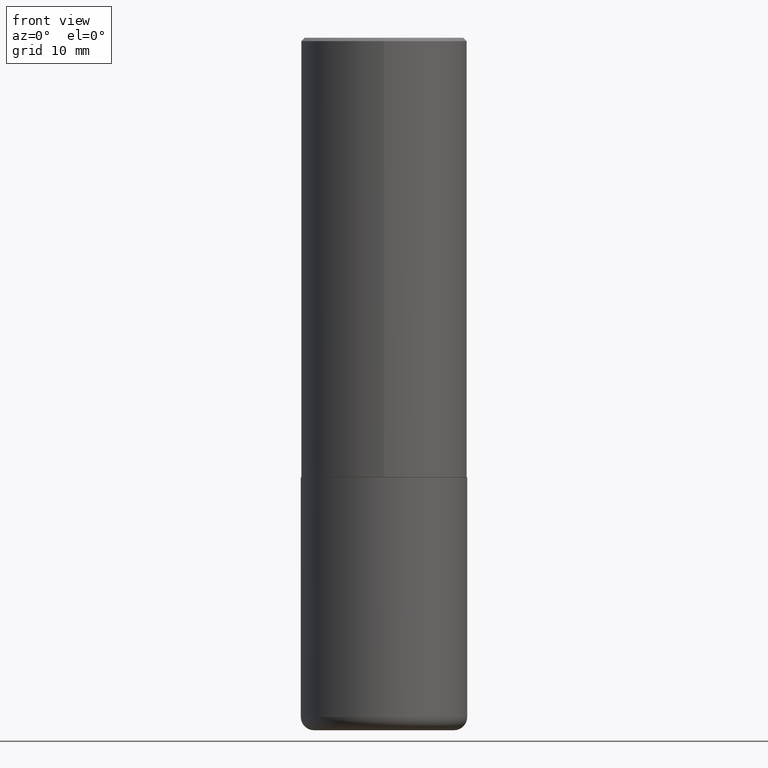
[diagram: clean part render]
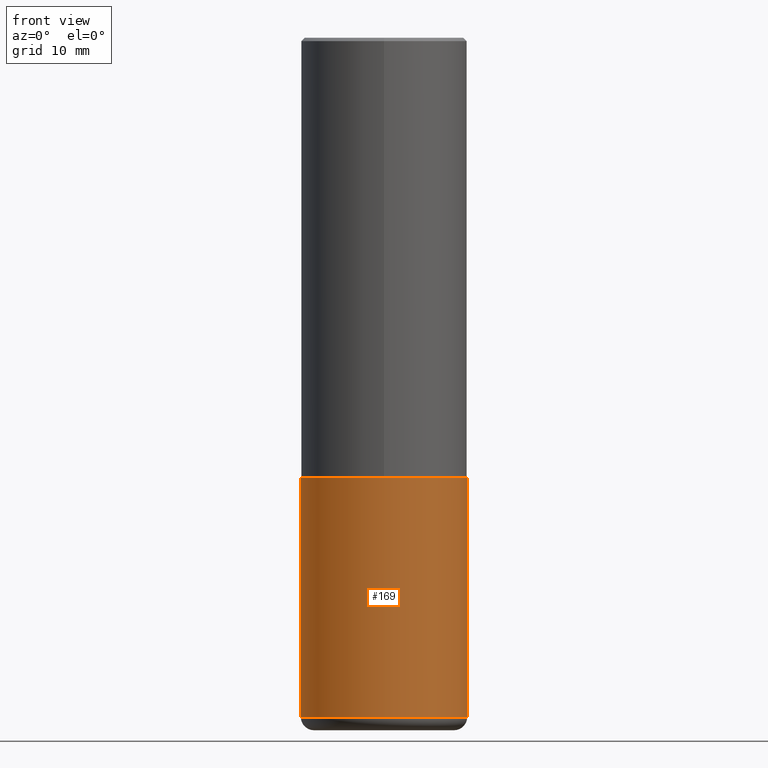
[diagram: same view with one face highlighted and labeled with its STEP entity id]
A machine part, front view. The second image highlights one B-rep face of the part: STEP entity #169.
In plain terms, the highlighted cylindrical surface (partial cylindrical patch) has radius 12.5006 mm, axis along (-0, 0, 1).
Its self-contained STEP definition (entity closure, byte-faithful):
#17 = AXIS2_PLACEMENT_3D ( 'NONE', #337, #87, #414 ) ;
#21 = EDGE_CURVE ( 'NONE', #369, #107, #357, .T. ) ;
#44 = AXIS2_PLACEMENT_3D ( 'NONE', #354, #325, #390 ) ;
#62 = EDGE_CURVE ( 'NONE', #205, #369, #309, .T. ) ;
#74 = CARTESIAN_POINT ( 'NONE',  ( 0.4921499999999999764, -3.436665081823295777E-15, 2.399810400207969603E-29 ) ) ;
#87 = DIRECTION ( 'NONE',  ( -2.445468806185136597E-29, 3.491481338843145583E-15, 1.000000000000000000 ) ) ;
#107 = VERTEX_POINT ( 'NONE', #154 ) ;
#123 = CARTESIAN_POINT ( 'NONE',  ( -0.4921499999999999764, 3.496936074043332897E-15, -2.420853904668951509E-29 ) ) ;
#127 = CARTESIAN_POINT ( 'NONE',  ( 0.4921500000000000874, -1.745775584234960235E-14, -4.015800000000000480 ) ) ;
#131 = VERTEX_POINT ( 'NONE', #127 ) ;
#133 = VECTOR ( 'NONE', #228, 39.37007874015748143 ) ;
#154 = CARTESIAN_POINT ( 'NONE',  ( 0.4921499999999999764, -1.250893019267332682E-14, -2.598400000000000265 ) ) ;
#168 = ORIENTED_EDGE ( 'NONE', *, *, #347, .T. ) ;
#169 = ADVANCED_FACE ( 'NONE', ( #259 ), #191, .T. ) ;
#172 = CIRCLE ( 'NONE', #44, 0.4921500000000000319 ) ;
#191 = CYLINDRICAL_SURFACE ( 'NONE', #373, 0.4921499999999999764 ) ;
#196 = CARTESIAN_POINT ( 'NONE',  ( -0.4921499999999999764, -8.049741861644835125E-15, -2.598400000000000265 ) ) ;
#205 = VERTEX_POINT ( 'NONE', #220 ) ;
#220 = CARTESIAN_POINT ( 'NONE',  ( -0.4921500000000000874, -1.052415468648297131E-14, -4.015800000000000480 ) ) ;
#228 = DIRECTION ( 'NONE',  ( -2.445468806185136877E-29, 3.491481338843145188E-15, 1.000000000000000000 ) ) ;
#237 = ORIENTED_EDGE ( 'NONE', *, *, #375, .T. ) ;
#258 = ORIENTED_EDGE ( 'NONE', *, *, #62, .F. ) ;
#259 = FACE_OUTER_BOUND ( 'NONE', #294, .T. ) ;
#290 = CARTESIAN_POINT ( 'NONE',  ( 0.000000000000000000, 0.000000000000000000, 0.000000000000000000 ) ) ;
#294 = EDGE_LOOP ( 'NONE', ( #258, #237, #168, #396 ) ) ;
#309 = LINE ( 'NONE', #123, #393 ) ;
#317 = DIRECTION ( 'NONE',  ( -2.445468806185136597E-29, 3.491481338843145583E-15, 1.000000000000000000 ) ) ;
#325 = DIRECTION ( 'NONE',  ( -2.445468806185136597E-29, 3.491481338843145583E-15, 1.000000000000000000 ) ) ;
#337 = CARTESIAN_POINT ( 'NONE',  ( 6.354306145991459756E-29, -9.072265110850031044E-15, -2.598400000000000265 ) ) ;
#347 = EDGE_CURVE ( 'NONE', #131, #107, #364, .T. ) ;
#348 = DIRECTION ( 'NONE',  ( 1.000000000000000000, -6.982962677686265922E-15, 4.876176775795935793E-29 ) ) ;
#354 = CARTESIAN_POINT ( 'NONE',  ( 9.820513631878272860E-29, -1.402109076052630500E-14, -4.015800000000000480 ) ) ;
#357 = CIRCLE ( 'NONE', #17, 0.4921499999999999764 ) ;
#364 = LINE ( 'NONE', #74, #133 ) ;
#369 = VERTEX_POINT ( 'NONE', #196 ) ;
#373 = AXIS2_PLACEMENT_3D ( 'NONE', #290, #317, #348 ) ;
#375 = EDGE_CURVE ( 'NONE', #205, #131, #172, .T. ) ;
#377 = DIRECTION ( 'NONE',  ( -2.445468806185136877E-29, 3.491481338843145188E-15, 1.000000000000000000 ) ) ;
#390 = DIRECTION ( 'NONE',  ( 1.000000000000000000, -6.982962677686265133E-15, 0.000000000000000000 ) ) ;
#393 = VECTOR ( 'NONE', #377, 39.37007874015748143 ) ;
#396 = ORIENTED_EDGE ( 'NONE', *, *, #21, .F. ) ;
#414 = DIRECTION ( 'NONE',  ( 1.000000000000000000, -6.982962677686265922E-15, 0.000000000000000000 ) ) ;